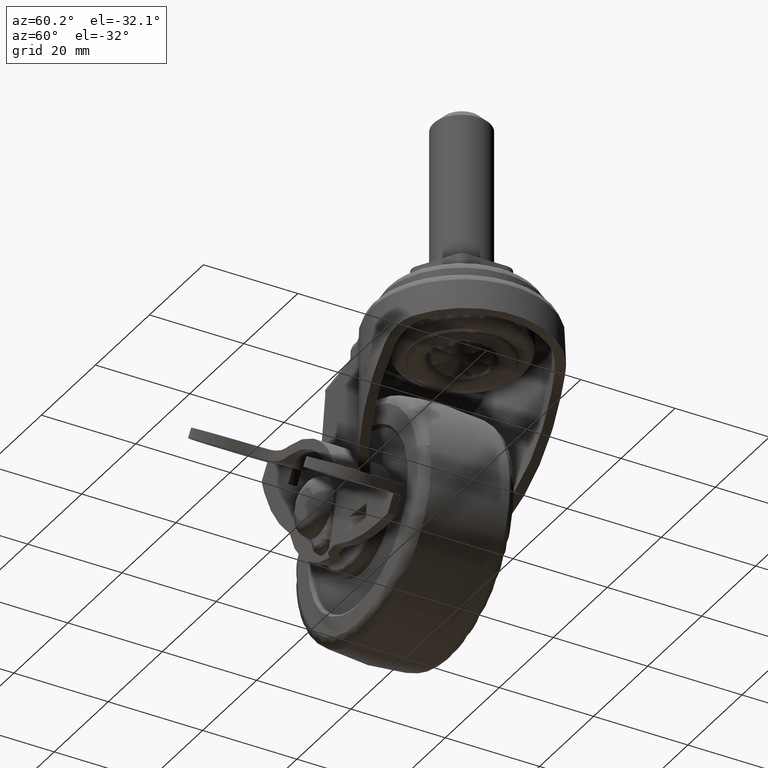
[diagram: clean part render]
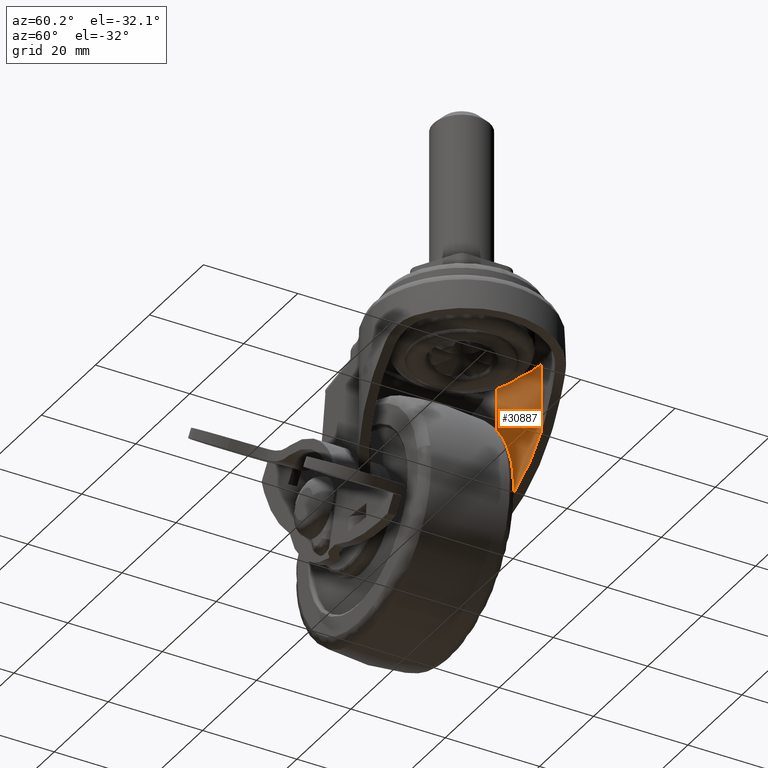
[diagram: same view with one face highlighted and labeled with its STEP entity id]
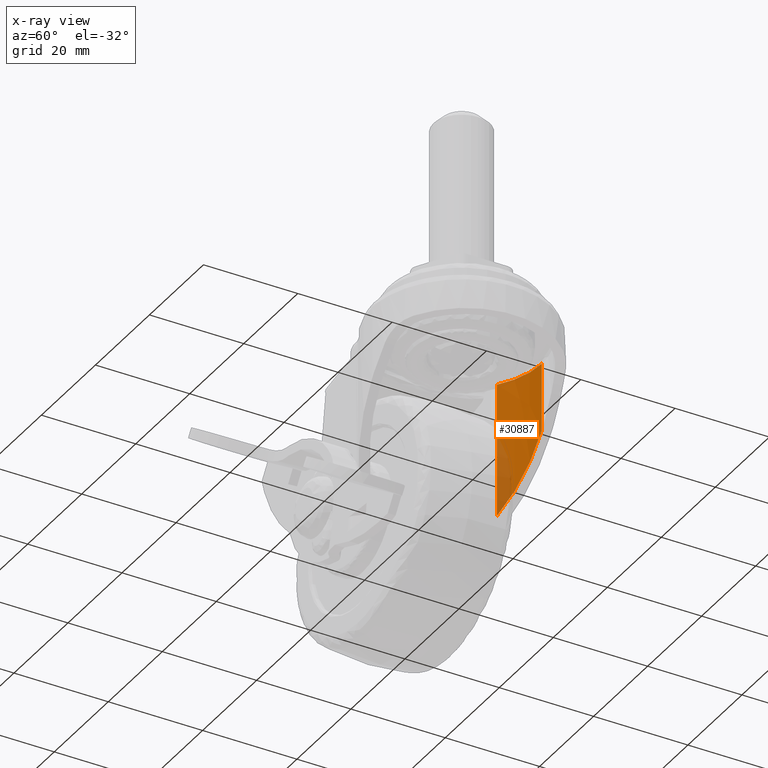
[diagram: x-ray of the same camera — body ghosted, the highlighted face saturated]
A machine part, auxiliary view. The second image highlights one B-rep face of the part: STEP entity #30887.
The next image is the same camera in x-ray: the body ghosted, the highlighted face saturated — about 17% of this face is hidden behind the body in this view.
In plain terms, the highlighted face is a freeform B-spline surface patch.
Its self-contained STEP definition (entity closure, byte-faithful):
#18330=CARTESIAN_POINT('',(21.0,17.0,30.959998999999900));
#18331=VERTEX_POINT('',#18330);
#18370=CARTESIAN_POINT('',(10.565647767613241,13.421039210526340,30.959998999999900));
#18371=VERTEX_POINT('',#18370);
#18383=CARTESIAN_POINT('',(21.0,17.0,30.959998999999900));
#18384=CARTESIAN_POINT('',(19.654183317346881,17.000324625703900,30.959998999999801));
#18385=CARTESIAN_POINT('',(17.372346039003158,16.727536661067180,30.959999000000192));
#18386=CARTESIAN_POINT('',(14.836654357840141,15.886883857976590,30.959998999999730));
#18387=CARTESIAN_POINT('',(12.661112626877330,14.872590406402461,30.959999000000099));
#18388=CARTESIAN_POINT('',(11.420161281400190,14.085569583019700,30.959998999999801));
#18389=CARTESIAN_POINT('',(10.565647767613241,13.421039210526340,30.959998999999900));
#18390=B_SPLINE_CURVE_WITH_KNOTS('',3,(#18383,#18384,#18385,#18386,#18387,#18388,#18389),.UNSPECIFIED.,.F.,.U.,(4,1,1,1,4),(9.796565E-009,4.037370389168002,6.845958195970717,7.986958528989939,11.234404372192170),.UNSPECIFIED.);
#18391=EDGE_CURVE('',#18331,#18371,#18390,.T.);
#19059=CARTESIAN_POINT('',(10.565647767613241,13.421039210526340,2.408528862296535));
#19060=VERTEX_POINT('',#19059);
#19061=CARTESIAN_POINT('',(10.565647767613241,13.421039210526340,30.959998999999900));
#19062=CARTESIAN_POINT('',(10.565647767613241,13.421039210526340,2.408528862296535));
#19063=QUASI_UNIFORM_CURVE('',1,(#19061,#19062),.UNSPECIFIED.,.F.,.U.);
#19064=EDGE_CURVE('',#18371,#19060,#19063,.T.);
#28841=CARTESIAN_POINT('',(21.0,17.0,16.505699334126700));
#28842=VERTEX_POINT('',#28841);
#28843=CARTESIAN_POINT('',(21.0,17.0,16.505699334126700));
#28844=CARTESIAN_POINT('',(15.169035885887952,17.0,8.627865300824270));
#28845=CARTESIAN_POINT('',(10.565647767613241,13.421039210526340,2.408528862296535));
#28853=(BOUNDED_CURVE()B_SPLINE_CURVE(2,(#28843,#28844,#28845),.UNSPECIFIED.,.F.,.U.)CURVE()GEOMETRIC_REPRESENTATION_ITEM()QUASI_UNIFORM_CURVE()RATIONAL_B_SPLINE_CURVE((1.0,0.945905094271313,1.0))REPRESENTATION_ITEM(''));
#28854=EDGE_CURVE('',#28842,#19060,#28853,.T.);
#30790=CARTESIAN_POINT('',(21.0,17.0,30.959998999999900));
#30791=CARTESIAN_POINT('',(21.0,17.0,16.505699334126700));
#30792=QUASI_UNIFORM_CURVE('',1,(#30790,#30791),.UNSPECIFIED.,.F.,.U.);
#30793=EDGE_CURVE('',#18331,#28842,#30792,.T.);
#30867=CARTESIAN_POINT('',(21.445008121233869,16.994174524584469,31.673785753442480));
#30868=CARTESIAN_POINT('',(21.445008121233869,16.994174524584469,1.676897440017886));
#30869=CARTESIAN_POINT('',(15.054131326593311,17.161525523087281,31.673785753442488));
#30870=CARTESIAN_POINT('',(15.054131326593311,17.161525523087281,1.676897440017886));
#30871=CARTESIAN_POINT('',(10.136650051621620,13.076223762962583,31.673785753442488));
#30872=CARTESIAN_POINT('',(10.136650051621620,13.076223762962583,1.676897440017886));
#30880=(BOUNDED_SURFACE()B_SPLINE_SURFACE(1,2,((#30867,#30869,#30871),(#30868,#30870,#30872)),.UNSPECIFIED.,.F.,.F.,.U.)B_SPLINE_SURFACE_WITH_KNOTS((2,2),(3,3),(0.0,29.996888313424598),(0.0,12.363459761530610),.UNSPECIFIED.)GEOMETRIC_REPRESENTATION_ITEM()RATIONAL_B_SPLINE_SURFACE(((1.0,0.934842313832479,0.997524173835072),(1.0,0.934842313832479,0.997524173835072)))REPRESENTATION_ITEM('')SURFACE());
#30881=ORIENTED_EDGE('',*,*,#30793,.F.);
#30882=ORIENTED_EDGE('',*,*,#18391,.T.);
#30883=ORIENTED_EDGE('',*,*,#19064,.T.);
#30884=ORIENTED_EDGE('',*,*,#28854,.F.);
#30885=EDGE_LOOP('',(#30881,#30882,#30883,#30884));
#30886=FACE_OUTER_BOUND('',#30885,.T.);
#30887=ADVANCED_FACE('',(#30886),#30880,.F.);